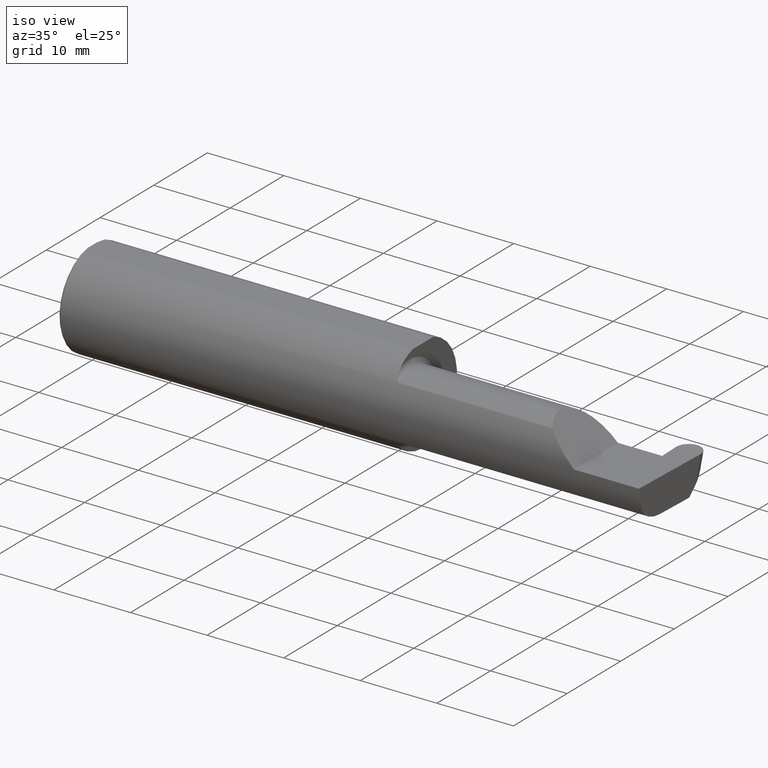
[diagram: clean part render]
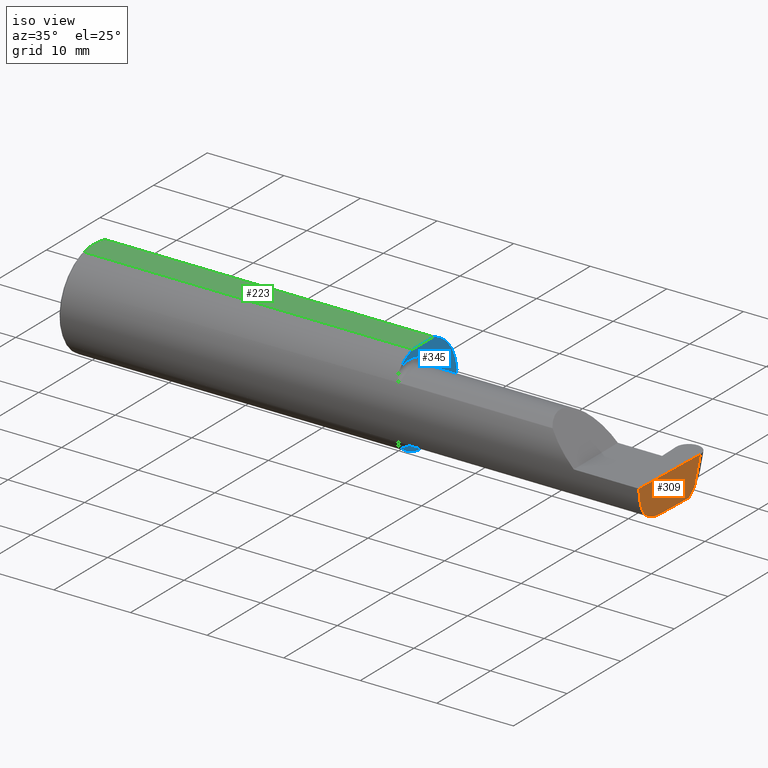
[diagram: same view with three faces highlighted in distinct colors, each labeled with its STEP entity id]
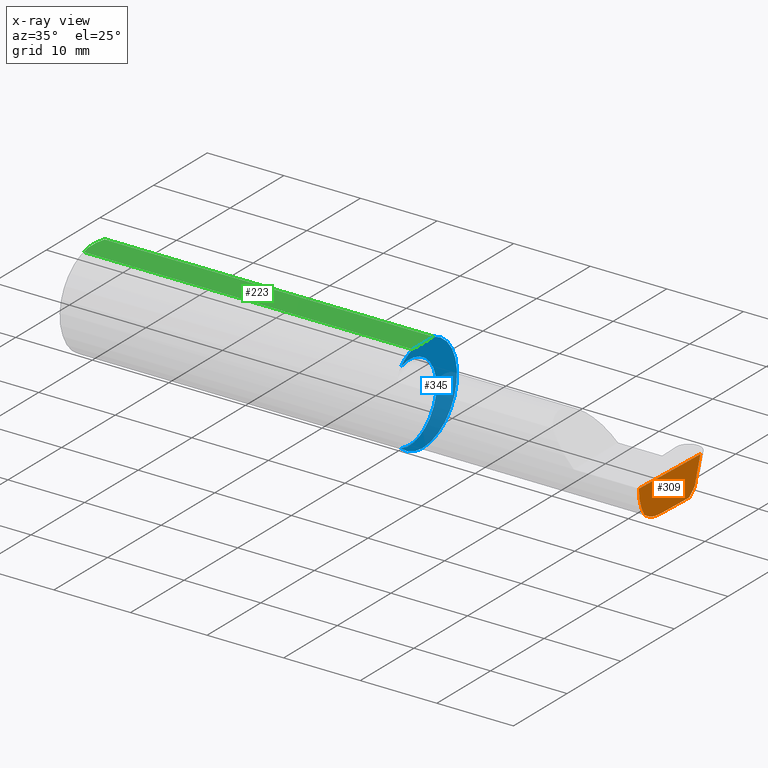
[diagram: x-ray of the same camera — body ghosted, the three highlighted faces saturated]
A machine part, iso view with three faces highlighted in distinct colors.
The next image is the same camera in x-ray (body ghosted, the three faces saturated) — at least one of them is partly hidden behind the body in this view.
Their STEP definitions:

[orange] entity #309 — the highlighted planar face has unit normal (-0.9992, 0.0349, 0.0175).
#11 = CARTESIAN_POINT ( 'NONE',  ( 2.987033238708274752, -0.1008499999999999674, -0.1750000000000000722 ) ) ;
#28 = VERTEX_POINT ( 'NONE', #130 ) ;
#39 = LINE ( 'NONE', #639, #667 ) ;
#51 = LINE ( 'NONE', #378, #547 ) ;
#90 = CARTESIAN_POINT ( 'NONE',  ( 2.983929579294953616, -0.2080850024789288877, -0.1382955322609668858 ) ) ;
#106 = ORIENTED_EDGE ( 'NONE', *, *, #596, .F. ) ;
#116 = FACE_OUTER_BOUND ( 'NONE', #438, .T. ) ;
#130 = CARTESIAN_POINT ( 'NONE',  ( 2.999898068948996244, 0.1800238777770215015, 0.000000000000000000 ) ) ;
#138 = DIRECTION ( 'NONE',  ( -0.9992386149554828290, 0.03489418134010775774, 0.01745240643728358798 ) ) ;
#183 = EDGE_CURVE ( 'NONE', #257, #28, #649, .T. ) ;
#197 = ORIENTED_EDGE ( 'NONE', *, *, #406, .T. ) ;
#206 = CARTESIAN_POINT ( 'NONE',  ( 2.984886542352623628, -0.2498499999999999888, 0.000000000000000000 ) ) ;
#210 = CARTESIAN_POINT ( 'NONE',  ( 2.996204691241262985, 0.1431283489340401394, -0.1376959882141292058 ) ) ;
#224 = CARTESIAN_POINT ( 'NONE',  ( 2.987033238708274752, -0.1008499999999999674, -0.1750000000000000722 ) ) ;
#241 = CARTESIAN_POINT ( 'NONE',  ( 2.985664738015655129, -0.1400387324517229082, -0.1750000000000001277 ) ) ;
#246 = CARTESIAN_POINT ( 'NONE',  ( 2.996893271351730004, 0.1562725836412660607, -0.1245517535069031456 ) ) ;
#248 =( BOUNDED_CURVE ( )  B_SPLINE_CURVE ( 3, ( #90, #635, #479, #206 ),
 .UNSPECIFIED., .F., .F. ) 
 B_SPLINE_CURVE_WITH_KNOTS ( ( 4, 4 ),
 ( 6.160376845738954721, 6.746954780470613144 ),
 .UNSPECIFIED. ) 
 CURVE ( )  GEOMETRIC_REPRESENTATION_ITEM ( )  RATIONAL_B_SPLINE_CURVE ( ( 1.000000000000000000, 0.9715321379117538569, 0.9715321379117538569, 1.000000000000000000 ) ) 
 REPRESENTATION_ITEM ( '' )  );
#257 = VERTEX_POINT ( 'NONE', #210 ) ;
#261 = VERTEX_POINT ( 'NONE', #428 ) ;
#271 = CARTESIAN_POINT ( 'NONE',  ( 2.999910294815772982, 0.1801460098349874084, 0.0004558030455618249425 ) ) ;
#276 = ORIENTED_EDGE ( 'NONE', *, *, #490, .F. ) ;
#281 = VECTOR ( 'NONE', #414, 39.37007874015748143 ) ;
#288 = DIRECTION ( 'NONE',  ( -0.03489949670249505725, -0.9993908270190959842, 0.000000000000000000 ) ) ;
#309 = ADVANCED_FACE ( 'NONE', ( #116 ), #553, .F. ) ;
#321 = ORIENTED_EDGE ( 'NONE', *, *, #183, .T. ) ;
#344 = VERTEX_POINT ( 'NONE', #352 ) ;
#352 = CARTESIAN_POINT ( 'NONE',  ( 2.994250465595685640, 0.1058243371481696615, -0.1750000000000001277 ) ) ;
#378 = CARTESIAN_POINT ( 'NONE',  ( 2.987538890366190802, -0.08637003105099157196, -0.1750000000000000722 ) ) ;
#406 = EDGE_CURVE ( 'NONE', #261, #605, #521, .T. ) ;
#414 = DIRECTION ( 'NONE',  ( -0.03701744261649875939, -0.7066221440565400025, -0.7066221440565478851 ) ) ;
#417 = LINE ( 'NONE', #246, #281 ) ;
#428 = CARTESIAN_POINT ( 'NONE',  ( 2.983929579294953616, -0.2080850024789288877, -0.1382955322609668858 ) ) ;
#438 = EDGE_LOOP ( 'NONE', ( #276, #321, #664, #627, #197, #106 ) ) ;
#479 = CARTESIAN_POINT ( 'NONE',  ( 2.984020840019027343, -0.2498499999999999888, -0.04956584089959698014 ) ) ;
#490 = EDGE_CURVE ( 'NONE', #257, #344, #417, .T. ) ;
#507 = CARTESIAN_POINT ( 'NONE',  ( 2.999961557721757099, 0.1818419583544338969, 0.000000000000000000 ) ) ;
#519 = CARTESIAN_POINT ( 'NONE',  ( 2.983929579294953616, -0.2080850024789288877, -0.1382955322609668858 ) ) ;
#521 =( BOUNDED_CURVE ( )  B_SPLINE_CURVE ( 3, ( #519, #571, #241, #11 ),
 .UNSPECIFIED., .F., .T. ) 
 B_SPLINE_CURVE_WITH_KNOTS ( ( 4, 4 ),
 ( 0.4474640105399667611, 1.107026853503871644 ),
 .UNSPECIFIED. ) 
 CURVE ( )  GEOMETRIC_REPRESENTATION_ITEM ( )  RATIONAL_B_SPLINE_CURVE ( ( 1.000000000000000000, 0.9640754331822831702, 0.9640754331822831702, 1.000000000000000000 ) ) 
 REPRESENTATION_ITEM ( '' )  );
#526 = EDGE_CURVE ( 'NONE', #261, #709, #248, .T. ) ;
#531 = EDGE_CURVE ( 'NONE', #28, #709, #39, .T. ) ;
#547 = VECTOR ( 'NONE', #660, 39.37007874015748854 ) ;
#553 = PLANE ( 'NONE',  #567 ) ;
#555 = DIRECTION ( 'NONE',  ( 0.02590004391968258463, 0.2587322210431824421, 0.9656017944882975268 ) ) ;
#567 = AXIS2_PLACEMENT_3D ( 'NONE', #507, #138, #288 ) ;
#571 = CARTESIAN_POINT ( 'NONE',  ( 2.984591634083985756, -0.1771157075472506726, -0.1623092683844332140 ) ) ;
#587 = DIRECTION ( 'NONE',  ( -0.03489949670249506419, -0.9993908270190959842, 0.000000000000000000 ) ) ;
#596 = EDGE_CURVE ( 'NONE', #344, #605, #51, .T. ) ;
#605 = VERTEX_POINT ( 'NONE', #224 ) ;
#627 = ORIENTED_EDGE ( 'NONE', *, *, #526, .F. ) ;
#634 = VECTOR ( 'NONE', #555, 39.37007874015748854 ) ;
#635 = CARTESIAN_POINT ( 'NONE',  ( 2.983692505346974944, -0.2355204011147992438, -0.09701513151466761853 ) ) ;
#639 = CARTESIAN_POINT ( 'NONE',  ( 2.999961557721757099, 0.1818419583544338969, 0.000000000000000000 ) ) ;
#644 = CARTESIAN_POINT ( 'NONE',  ( 2.984886542352623628, -0.2498499999999999888, 0.000000000000000000 ) ) ;
#649 = LINE ( 'NONE', #271, #634 ) ;
#660 = DIRECTION ( 'NONE',  ( -0.03489949670249505725, -0.9993908270190959842, 1.222058880457094394E-16 ) ) ;
#664 = ORIENTED_EDGE ( 'NONE', *, *, #531, .T. ) ;
#667 = VECTOR ( 'NONE', #587, 39.37007874015748143 ) ;
#709 = VERTEX_POINT ( 'NONE', #644 ) ;

[blue] entity #345 — the highlighted planar face has unit normal (1, 0, 0).
#1 = CARTESIAN_POINT ( 'NONE',  ( 1.700000000000000178, 0.000000000000000000, 0.000000000000000000 ) ) ;
#2 = EDGE_CURVE ( 'NONE', #109, #354, #558, .T. ) ;
#18 = DIRECTION ( 'NONE',  ( 0.000000000000000000, -1.000000000000000000, 0.000000000000000000 ) ) ;
#25 = PLANE ( 'NONE',  #212 ) ;
#47 = CARTESIAN_POINT ( 'NONE',  ( 1.700000000000000178, -0.1616050818046603776, 0.1905487340154980724 ) ) ;
#48 = ORIENTED_EDGE ( 'NONE', *, *, #213, .T. ) ;
#57 = AXIS2_PLACEMENT_3D ( 'NONE', #1, #323, #503 ) ;
#79 = FACE_OUTER_BOUND ( 'NONE', #626, .T. ) ;
#82 = VECTOR ( 'NONE', #104, 39.37007874015748143 ) ;
#89 = VERTEX_POINT ( 'NONE', #91 ) ;
#91 = CARTESIAN_POINT ( 'NONE',  ( 1.700000000000000178, 0.07650098038587520299, 0.2378499999999998671 ) ) ;
#104 = DIRECTION ( 'NONE',  ( -5.818441080112232858E-17, 1.000000000000000000, 0.000000000000000000 ) ) ;
#109 = VERTEX_POINT ( 'NONE', #47 ) ;
#135 = CIRCLE ( 'NONE', #57, 0.2498499999999999888 ) ;
#151 = DIRECTION ( 'NONE',  ( 1.000000000000000000, 5.818441080112232858E-17, 0.000000000000000000 ) ) ;
#160 = CARTESIAN_POINT ( 'NONE',  ( 1.700000000000000178, -0.07650098038587523075, 0.2378499999999998671 ) ) ;
#202 = CIRCLE ( 'NONE', #577, 0.2498499999999999888 ) ;
#212 = AXIS2_PLACEMENT_3D ( 'NONE', #614, #569, #291 ) ;
#213 = EDGE_CURVE ( 'NONE', #354, #89, #135, .T. ) ;
#291 = DIRECTION ( 'NONE',  ( -5.818441080112232858E-17, 1.000000000000000000, 0.000000000000000000 ) ) ;
#294 = CARTESIAN_POINT ( 'NONE',  ( 1.700000000000000178, -0.1008500000000000785, 0.000000000000000000 ) ) ;
#300 = VERTEX_POINT ( 'NONE', #160 ) ;
#303 = CARTESIAN_POINT ( 'NONE',  ( 1.700000000000000178, 0.000000000000000000, 0.000000000000000000 ) ) ;
#323 = DIRECTION ( 'NONE',  ( 1.000000000000000000, 5.818441080112232858E-17, 0.000000000000000000 ) ) ;
#345 = ADVANCED_FACE ( 'NONE', ( #79 ), #25, .T. ) ;
#354 = VERTEX_POINT ( 'NONE', #678 ) ;
#398 = ORIENTED_EDGE ( 'NONE', *, *, #2, .T. ) ;
#435 = CARTESIAN_POINT ( 'NONE',  ( 1.700000000000000178, 0.2498499999999997667, 0.2378499999999998671 ) ) ;
#491 = LINE ( 'NONE', #435, #82 ) ;
#503 = DIRECTION ( 'NONE',  ( 0.000000000000000000, 1.000000000000000000, 0.000000000000000000 ) ) ;
#512 = DIRECTION ( 'NONE',  ( -1.000000000000000000, -5.818441080112232858E-17, -0.000000000000000000 ) ) ;
#523 = DIRECTION ( 'NONE',  ( 0.000000000000000000, 1.000000000000000000, 0.000000000000000000 ) ) ;
#552 = EDGE_CURVE ( 'NONE', #300, #109, #202, .T. ) ;
#558 = CIRCLE ( 'NONE', #612, 0.1999999999999999833 ) ;
#569 = DIRECTION ( 'NONE',  ( 1.000000000000000000, 5.818441080112232858E-17, 0.000000000000000000 ) ) ;
#577 = AXIS2_PLACEMENT_3D ( 'NONE', #303, #151, #523 ) ;
#612 = AXIS2_PLACEMENT_3D ( 'NONE', #294, #512, #18 ) ;
#614 = CARTESIAN_POINT ( 'NONE',  ( 1.700000000000000178, 0.2498499999999998500, 0.000000000000000000 ) ) ;
#626 = EDGE_LOOP ( 'NONE', ( #48, #674, #676, #398 ) ) ;
#648 = EDGE_CURVE ( 'NONE', #300, #89, #491, .T. ) ;
#674 = ORIENTED_EDGE ( 'NONE', *, *, #648, .F. ) ;
#676 = ORIENTED_EDGE ( 'NONE', *, *, #552, .T. ) ;
#678 = CARTESIAN_POINT ( 'NONE',  ( 1.700000000000000178, -0.1616050818046603776, -0.1905487340154980724 ) ) ;

[green] entity #223 — the highlighted planar face has unit normal (0, 0, 1).
#30 = CARTESIAN_POINT ( 'NONE',  ( 0.001983148254845701515, -0.04629825796642599717, 0.2378499999999998671 ) ) ;
#32 = ORIENTED_EDGE ( 'NONE', *, *, #119, .T. ) ;
#36 = CARTESIAN_POINT ( 'NONE',  ( 0.009999999999999856226, 0.07650098038587520299, 0.2378499999999998671 ) ) ;
#38 = EDGE_CURVE ( 'NONE', #240, #300, #349, .T. ) ;
#42 = CARTESIAN_POINT ( 'NONE',  ( 0.000000000000000000, 0.07650098038587520299, 0.2378499999999998671 ) ) ;
#44 = VECTOR ( 'NONE', #144, 39.37007874015748143 ) ;
#50 = LINE ( 'NONE', #42, #268 ) ;
#54 = EDGE_LOOP ( 'NONE', ( #539, #237, #32, #247, #508, #60 ) ) ;
#59 = DIRECTION ( 'NONE',  ( 1.000000000000000000, 0.000000000000000000, -0.000000000000000000 ) ) ;
#60 = ORIENTED_EDGE ( 'NONE', *, *, #457, .F. ) ;
#75 = LINE ( 'NONE', #249, #44 ) ;
#76 = VERTEX_POINT ( 'NONE', #632 ) ;
#80 = DIRECTION ( 'NONE',  ( 1.000000000000000000, 0.000000000000000000, 0.000000000000000000 ) ) ;
#82 = VECTOR ( 'NONE', #104, 39.37007874015748143 ) ;
#89 = VERTEX_POINT ( 'NONE', #91 ) ;
#91 = CARTESIAN_POINT ( 'NONE',  ( 1.700000000000000178, 0.07650098038587520299, 0.2378499999999998671 ) ) ;
#92 = EDGE_CURVE ( 'NONE', #127, #565, #147, .T. ) ;
#104 = DIRECTION ( 'NONE',  ( -5.818441080112232858E-17, 1.000000000000000000, 0.000000000000000000 ) ) ;
#113 = CARTESIAN_POINT ( 'NONE',  ( 0.009999999999999856226, -0.07650098038587520299, 0.2378499999999998671 ) ) ;
#119 = EDGE_CURVE ( 'NONE', #89, #565, #50, .T. ) ;
#127 = VERTEX_POINT ( 'NONE', #256 ) ;
#144 = DIRECTION ( 'NONE',  ( -0.000000000000000000, 1.000000000000000000, -0.000000000000000000 ) ) ;
#145 = CARTESIAN_POINT ( 'NONE',  ( 0.002005502345409059580, 0.04647171987093979412, 0.2378499999999998671 ) ) ;
#147 = B_SPLINE_CURVE_WITH_KNOTS ( 'NONE', 3,
 ( #421, #145, #474, #470 ),
 .UNSPECIFIED., .F., .F.,
 ( 4, 4 ),
 ( 0.01593449416844770414, 0.01712021724825603733 ),
 .UNSPECIFIED. ) ;
#160 = CARTESIAN_POINT ( 'NONE',  ( 1.700000000000000178, -0.07650098038587523075, 0.2378499999999998671 ) ) ;
#196 = CARTESIAN_POINT ( 'NONE',  ( 0.000000000000000000, -0.03090954545120560767, 0.2378499999999998671 ) ) ;
#203 = CARTESIAN_POINT ( 'NONE',  ( 0.009999999999999856226, -0.07650098038587520299, 0.2378499999999998671 ) ) ;
#223 = ADVANCED_FACE ( 'NONE', ( #607 ), #708, .T. ) ;
#237 = ORIENTED_EDGE ( 'NONE', *, *, #648, .T. ) ;
#240 = VERTEX_POINT ( 'NONE', #113 ) ;
#247 = ORIENTED_EDGE ( 'NONE', *, *, #92, .F. ) ;
#249 = CARTESIAN_POINT ( 'NONE',  ( 0.000000000000000000, 0.2498499999999998500, 0.2378499999999998671 ) ) ;
#256 = CARTESIAN_POINT ( 'NONE',  ( 0.000000000000000000, 0.03090954545120574992, 0.2378499999999998671 ) ) ;
#268 = VECTOR ( 'NONE', #416, 39.37007874015748143 ) ;
#297 = CARTESIAN_POINT ( 'NONE',  ( 0.000000000000000000, -0.07650098038587520299, 0.2378499999999998671 ) ) ;
#300 = VERTEX_POINT ( 'NONE', #160 ) ;
#307 = CARTESIAN_POINT ( 'NONE',  ( 0.005459900170181723050, -0.06167314502012866823, 0.2378499999999998671 ) ) ;
#349 = LINE ( 'NONE', #297, #430 ) ;
#416 = DIRECTION ( 'NONE',  ( -1.000000000000000000, -0.000000000000000000, -0.000000000000000000 ) ) ;
#421 = CARTESIAN_POINT ( 'NONE',  ( 0.000000000000000000, 0.03090954545120574992, 0.2378499999999998671 ) ) ;
#430 = VECTOR ( 'NONE', #80, 39.37007874015748143 ) ;
#435 = CARTESIAN_POINT ( 'NONE',  ( 1.700000000000000178, 0.2498499999999997667, 0.2378499999999998671 ) ) ;
#441 = DIRECTION ( 'NONE',  ( 0.000000000000000000, 0.000000000000000000, 1.000000000000000000 ) ) ;
#455 = AXIS2_PLACEMENT_3D ( 'NONE', #499, #441, #59 ) ;
#457 = EDGE_CURVE ( 'NONE', #240, #76, #621, .T. ) ;
#460 = EDGE_CURVE ( 'NONE', #76, #127, #75, .T. ) ;
#470 = CARTESIAN_POINT ( 'NONE',  ( 0.009999999999999856226, 0.07650098038587520299, 0.2378499999999998671 ) ) ;
#474 = CARTESIAN_POINT ( 'NONE',  ( 0.005466242398876384675, 0.06169385855649840017, 0.2378499999999998671 ) ) ;
#491 = LINE ( 'NONE', #435, #82 ) ;
#499 = CARTESIAN_POINT ( 'NONE',  ( 3.501298404146671484, 0.2498499999999998500, 0.2378499999999998671 ) ) ;
#508 = ORIENTED_EDGE ( 'NONE', *, *, #460, .F. ) ;
#539 = ORIENTED_EDGE ( 'NONE', *, *, #38, .T. ) ;
#565 = VERTEX_POINT ( 'NONE', #36 ) ;
#607 = FACE_OUTER_BOUND ( 'NONE', #54, .T. ) ;
#621 = B_SPLINE_CURVE_WITH_KNOTS ( 'NONE', 3,
 ( #203, #307, #30, #196 ),
 .UNSPECIFIED., .F., .F.,
 ( 4, 4 ),
 ( 0.01317593029100230795, 0.01435802289191462008 ),
 .UNSPECIFIED. ) ;
#632 = CARTESIAN_POINT ( 'NONE',  ( 0.000000000000000000, -0.03090954545120560767, 0.2378499999999998671 ) ) ;
#648 = EDGE_CURVE ( 'NONE', #300, #89, #491, .T. ) ;
#708 = PLANE ( 'NONE',  #455 ) ;